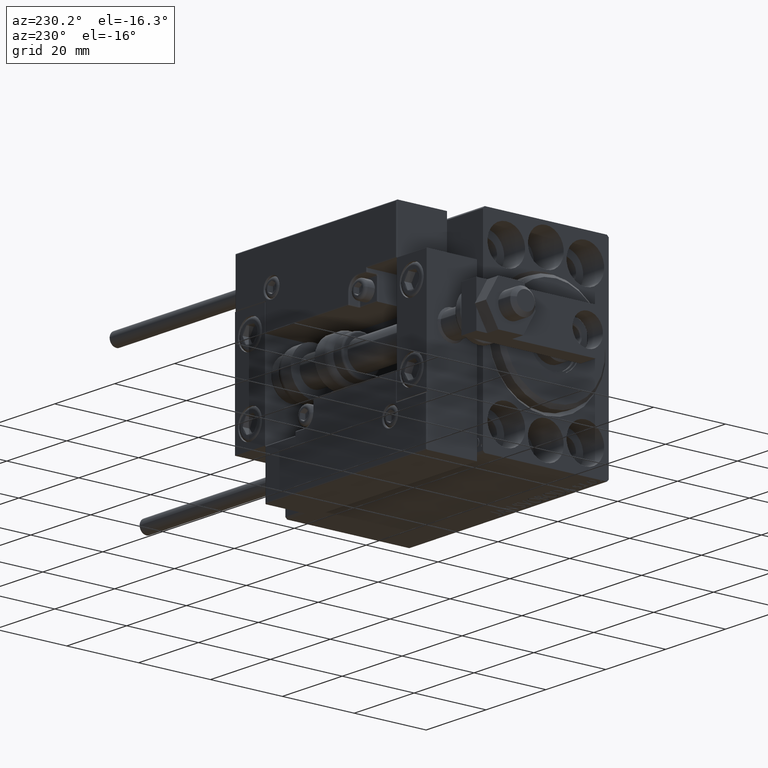
[diagram: clean part render]
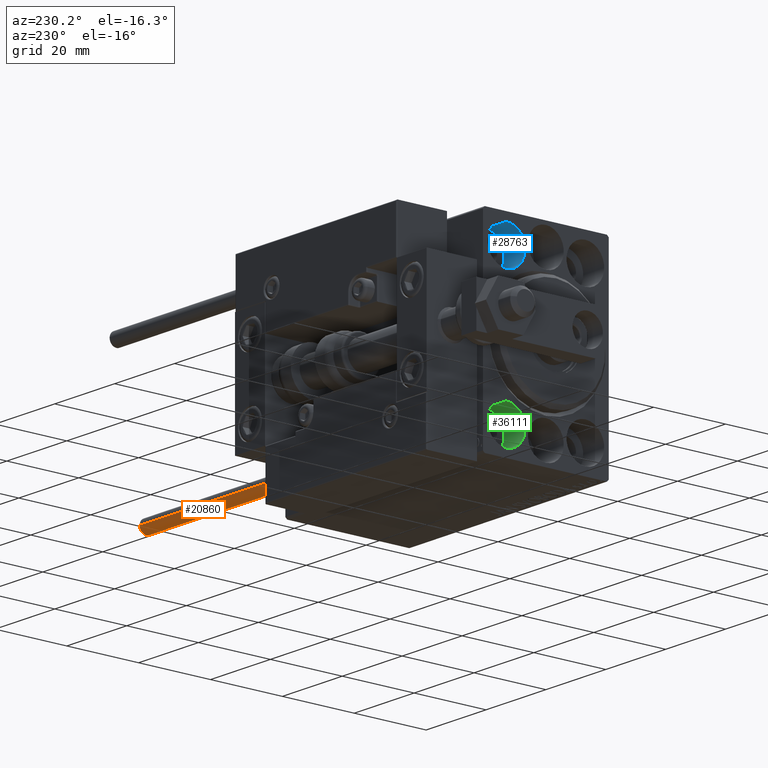
[diagram: same view with three faces highlighted in distinct colors, each labeled with its STEP entity id]
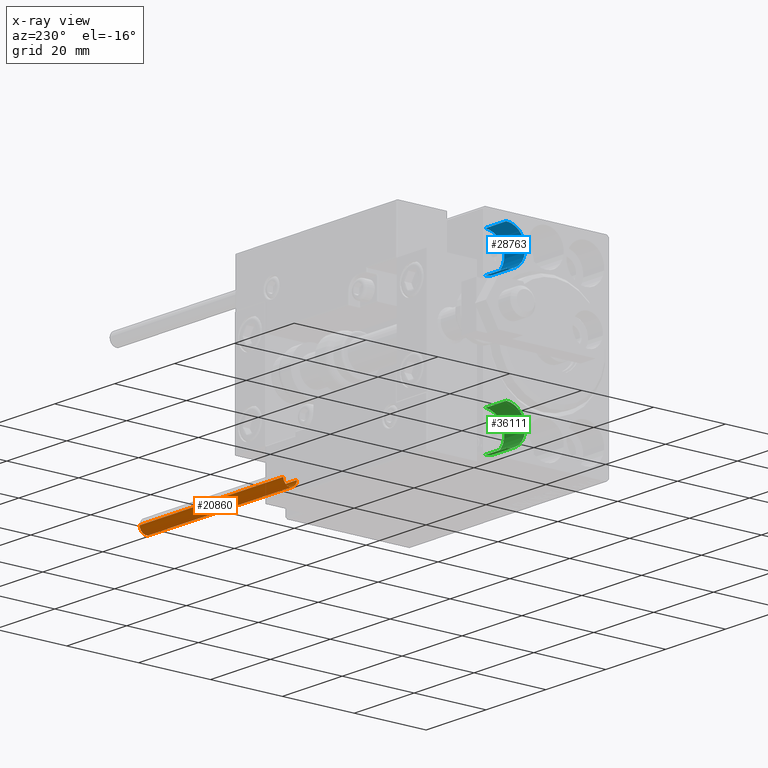
[diagram: x-ray of the same camera — body ghosted, the three highlighted faces saturated]
A machine part, auxiliary view with three faces highlighted in distinct colors.
The next image is the same camera in x-ray (body ghosted, the three faces saturated) — at least one of them is partly hidden behind the body in this view.
Their STEP definitions:

[orange] entity #20860 — the highlighted cylindrical surface (edge-blend (fillet) strip) has radius 1.9 mm, axis along (-1, 0, 0).
#56 = CARTESIAN_POINT ( 'NONE',  ( 0.000000000000000000, 0.000000000000000000, 0.000000000000000000 ) ) ;
#1175 = AXIS2_PLACEMENT_3D ( 'NONE', #20786, #16994, #36771 ) ;
#1395 = DIRECTION ( 'NONE',  ( -0.000000000000000000, -0.000000000000000000, -1.000000000000000000 ) ) ;
#3128 = AXIS2_PLACEMENT_3D ( 'NONE', #33222, #44137, #48200 ) ;
#3383 = VERTEX_POINT ( 'NONE', #26765 ) ;
#3630 = CARTESIAN_POINT ( 'NONE',  ( 1.899999999999999467, 2.326828918379970872E-16, 48.00000000000000000 ) ) ;
#4697 = LINE ( 'NONE', #28015, #36659 ) ;
#5604 = ORIENTED_EDGE ( 'NONE', *, *, #42989, .T. ) ;
#7930 = VERTEX_POINT ( 'NONE', #31806 ) ;
#10040 = VECTOR ( 'NONE', #15552, 1000.000000000000000 ) ;
#10936 = EDGE_LOOP ( 'NONE', ( #11053, #17875, #5604, #42778 ) ) ;
#11053 = ORIENTED_EDGE ( 'NONE', *, *, #46883, .F. ) ;
#12409 = CARTESIAN_POINT ( 'NONE',  ( 1.899999999999999467, 2.326828918379970872E-16, 48.00000000000000000 ) ) ;
#13704 = CYLINDRICAL_SURFACE ( 'NONE', #3128, 1.899999999999999467 ) ;
#15552 = DIRECTION ( 'NONE',  ( -0.000000000000000000, -0.000000000000000000, -1.000000000000000000 ) ) ;
#15703 = CARTESIAN_POINT ( 'NONE',  ( 1.899999999999999467, 2.326828918379970872E-16, 0.000000000000000000 ) ) ;
#16994 = DIRECTION ( 'NONE',  ( 0.000000000000000000, 0.000000000000000000, 1.000000000000000000 ) ) ;
#17875 = ORIENTED_EDGE ( 'NONE', *, *, #47280, .F. ) ;
#20786 = CARTESIAN_POINT ( 'NONE',  ( 0.000000000000000000, 0.000000000000000000, 48.00000000000000000 ) ) ;
#20860 = ADVANCED_FACE ( 'NONE', ( #25335 ), #13704, .T. ) ;
#21771 = VERTEX_POINT ( 'NONE', #15703 ) ;
#22691 = CIRCLE ( 'NONE', #40518, 1.899999999999999467 ) ;
#23617 = DIRECTION ( 'NONE',  ( 1.000000000000000000, 0.000000000000000000, 0.000000000000000000 ) ) ;
#25039 = EDGE_CURVE ( 'NONE', #3383, #21771, #22691, .T. ) ;
#25335 = FACE_OUTER_BOUND ( 'NONE', #10936, .T. ) ;
#26765 = CARTESIAN_POINT ( 'NONE',  ( -1.899999999999999467, 0.000000000000000000, 0.000000000000000000 ) ) ;
#28015 = CARTESIAN_POINT ( 'NONE',  ( -1.899999999999999467, 0.000000000000000000, 48.00000000000000000 ) ) ;
#29225 = VERTEX_POINT ( 'NONE', #12409 ) ;
#31806 = CARTESIAN_POINT ( 'NONE',  ( -1.899999999999999467, 0.000000000000000000, 48.00000000000000000 ) ) ;
#33222 = CARTESIAN_POINT ( 'NONE',  ( 0.000000000000000000, 0.000000000000000000, 48.00000000000000000 ) ) ;
#36659 = VECTOR ( 'NONE', #1395, 1000.000000000000000 ) ;
#36771 = DIRECTION ( 'NONE',  ( 1.000000000000000000, 0.000000000000000000, 0.000000000000000000 ) ) ;
#37651 = CIRCLE ( 'NONE', #1175, 1.899999999999999467 ) ;
#40518 = AXIS2_PLACEMENT_3D ( 'NONE', #56, #41920, #23617 ) ;
#41920 = DIRECTION ( 'NONE',  ( 0.000000000000000000, 0.000000000000000000, 1.000000000000000000 ) ) ;
#42778 = ORIENTED_EDGE ( 'NONE', *, *, #25039, .T. ) ;
#42989 = EDGE_CURVE ( 'NONE', #7930, #3383, #4697, .T. ) ;
#44137 = DIRECTION ( 'NONE',  ( -0.000000000000000000, -0.000000000000000000, -1.000000000000000000 ) ) ;
#45994 = LINE ( 'NONE', #3630, #10040 ) ;
#46883 = EDGE_CURVE ( 'NONE', #29225, #21771, #45994, .T. ) ;
#47280 = EDGE_CURVE ( 'NONE', #7930, #29225, #37651, .T. ) ;
#48200 = DIRECTION ( 'NONE',  ( -1.000000000000000000, 0.000000000000000000, 0.000000000000000000 ) ) ;

[blue] entity #28763 — the highlighted cylindrical surface (edge-blend (fillet) strip) has radius 5.25 mm, axis along (-1, -0, -0).
#474 = VECTOR ( 'NONE', #20804, 1000.000000000000000 ) ;
#1077 = AXIS2_PLACEMENT_3D ( 'NONE', #21989, #13886, #44323 ) ;
#1244 = EDGE_CURVE ( 'NONE', #16791, #38039, #39845, .T. ) ;
#1393 = EDGE_CURVE ( 'NONE', #18817, #38039, #34429, .T. ) ;
#2107 = LINE ( 'NONE', #24914, #42874 ) ;
#3676 = ORIENTED_EDGE ( 'NONE', *, *, #11910, .T. ) ;
#8661 = EDGE_LOOP ( 'NONE', ( #24657, #3676, #43004, #8737 ) ) ;
#8737 = ORIENTED_EDGE ( 'NONE', *, *, #1244, .F. ) ;
#11910 = EDGE_CURVE ( 'NONE', #15816, #18817, #2107, .T. ) ;
#13886 = DIRECTION ( 'NONE',  ( -1.000000000000000000, 0.000000000000000000, 0.000000000000000000 ) ) ;
#15391 = CARTESIAN_POINT ( 'NONE',  ( 0.000000000000000000, 11.00000000000000355, 20.00000000000000000 ) ) ;
#15753 = DIRECTION ( 'NONE',  ( -1.000000000000000000, -0.000000000000000000, -0.000000000000000000 ) ) ;
#15816 = VERTEX_POINT ( 'NONE', #38712 ) ;
#16502 = CARTESIAN_POINT ( 'NONE',  ( 7.000000000000000000, 11.00000000000000355, 20.00000000000000000 ) ) ;
#16791 = VERTEX_POINT ( 'NONE', #20420 ) ;
#18100 = CARTESIAN_POINT ( 'NONE',  ( 0.000000000000000000, 11.00000000000000355, 14.75000000000000000 ) ) ;
#18817 = VERTEX_POINT ( 'NONE', #18100 ) ;
#19183 = DIRECTION ( 'NONE',  ( -1.000000000000000000, 0.000000000000000000, 0.000000000000000000 ) ) ;
#20420 = CARTESIAN_POINT ( 'NONE',  ( 7.000000000000000000, 11.00000000000000355, 25.25000000000000000 ) ) ;
#20804 = DIRECTION ( 'NONE',  ( -1.000000000000000000, -0.000000000000000000, -0.000000000000000000 ) ) ;
#20872 = DIRECTION ( 'NONE',  ( -1.000000000000000000, -0.000000000000000000, -0.000000000000000000 ) ) ;
#21464 = AXIS2_PLACEMENT_3D ( 'NONE', #15391, #19183, #50136 ) ;
#21989 = CARTESIAN_POINT ( 'NONE',  ( 7.000000000000000000, 11.00000000000000355, 20.00000000000000000 ) ) ;
#24657 = ORIENTED_EDGE ( 'NONE', *, *, #36067, .F. ) ;
#24914 = CARTESIAN_POINT ( 'NONE',  ( 7.000000000000000000, 11.00000000000000355, 14.75000000000000000 ) ) ;
#27659 = DIRECTION ( 'NONE',  ( 0.000000000000000000, 0.000000000000000000, 1.000000000000000000 ) ) ;
#28763 = ADVANCED_FACE ( 'NONE', ( #42640 ), #39594, .F. ) ;
#34429 = CIRCLE ( 'NONE', #21464, 5.250000000000000888 ) ;
#36067 = EDGE_CURVE ( 'NONE', #15816, #16791, #44815, .T. ) ;
#38039 = VERTEX_POINT ( 'NONE', #48965 ) ;
#38712 = CARTESIAN_POINT ( 'NONE',  ( 7.000000000000000000, 11.00000000000000355, 14.75000000000000000 ) ) ;
#39594 = CYLINDRICAL_SURFACE ( 'NONE', #47042, 5.250000000000000888 ) ;
#39845 = LINE ( 'NONE', #40344, #474 ) ;
#40344 = CARTESIAN_POINT ( 'NONE',  ( 7.000000000000000000, 11.00000000000000355, 25.25000000000000000 ) ) ;
#42640 = FACE_OUTER_BOUND ( 'NONE', #8661, .T. ) ;
#42874 = VECTOR ( 'NONE', #20872, 1000.000000000000000 ) ;
#43004 = ORIENTED_EDGE ( 'NONE', *, *, #1393, .T. ) ;
#44323 = DIRECTION ( 'NONE',  ( 0.000000000000000000, 0.000000000000000000, 1.000000000000000000 ) ) ;
#44815 = CIRCLE ( 'NONE', #1077, 5.250000000000000888 ) ;
#47042 = AXIS2_PLACEMENT_3D ( 'NONE', #16502, #15753, #27659 ) ;
#48965 = CARTESIAN_POINT ( 'NONE',  ( 0.000000000000000000, 11.00000000000000355, 25.25000000000000000 ) ) ;
#50136 = DIRECTION ( 'NONE',  ( 0.000000000000000000, 0.000000000000000000, 1.000000000000000000 ) ) ;

[green] entity #36111 — the highlighted cylindrical surface (edge-blend (fillet) strip) has radius 5.25 mm, axis along (-1, -0, -0).
#3164 = EDGE_CURVE ( 'NONE', #47172, #37552, #40119, .T. ) ;
#3687 = AXIS2_PLACEMENT_3D ( 'NONE', #24278, #43823, #20474 ) ;
#3918 = DIRECTION ( 'NONE',  ( -1.000000000000000000, -0.000000000000000000, -0.000000000000000000 ) ) ;
#5665 = DIRECTION ( 'NONE',  ( -1.000000000000000000, 0.000000000000000000, 0.000000000000000000 ) ) ;
#5766 = CYLINDRICAL_SURFACE ( 'NONE', #48896, 5.250000000000000888 ) ;
#6909 = CARTESIAN_POINT ( 'NONE',  ( 7.000000000000000000, 11.00000000000000355, -14.75000000000000000 ) ) ;
#7724 = EDGE_CURVE ( 'NONE', #47172, #20429, #11025, .T. ) ;
#8886 = VERTEX_POINT ( 'NONE', #25171 ) ;
#10477 = ORIENTED_EDGE ( 'NONE', *, *, #18063, .F. ) ;
#11025 = LINE ( 'NONE', #42231, #36208 ) ;
#14136 = DIRECTION ( 'NONE',  ( -1.000000000000000000, -0.000000000000000000, -0.000000000000000000 ) ) ;
#14865 = AXIS2_PLACEMENT_3D ( 'NONE', #17325, #5665, #36115 ) ;
#17325 = CARTESIAN_POINT ( 'NONE',  ( 0.000000000000000000, 11.00000000000000355, -20.00000000000000000 ) ) ;
#18063 = EDGE_CURVE ( 'NONE', #37552, #8886, #45476, .T. ) ;
#19104 = CARTESIAN_POINT ( 'NONE',  ( 7.000000000000000000, 11.00000000000000355, -14.75000000000000000 ) ) ;
#19715 = CIRCLE ( 'NONE', #14865, 5.250000000000000888 ) ;
#20429 = VERTEX_POINT ( 'NONE', #21354 ) ;
#20474 = DIRECTION ( 'NONE',  ( 0.000000000000000000, 0.000000000000000000, 1.000000000000000000 ) ) ;
#21223 = CARTESIAN_POINT ( 'NONE',  ( 7.000000000000000000, 11.00000000000000355, -20.00000000000000000 ) ) ;
#21354 = CARTESIAN_POINT ( 'NONE',  ( 0.000000000000000000, 11.00000000000000355, -25.25000000000000000 ) ) ;
#22384 = DIRECTION ( 'NONE',  ( -1.000000000000000000, -0.000000000000000000, -0.000000000000000000 ) ) ;
#24278 = CARTESIAN_POINT ( 'NONE',  ( 7.000000000000000000, 11.00000000000000355, -20.00000000000000000 ) ) ;
#25171 = CARTESIAN_POINT ( 'NONE',  ( 0.000000000000000000, 11.00000000000000355, -14.75000000000000000 ) ) ;
#27755 = ORIENTED_EDGE ( 'NONE', *, *, #7724, .T. ) ;
#28129 = VECTOR ( 'NONE', #22384, 1000.000000000000000 ) ;
#36111 = ADVANCED_FACE ( 'NONE', ( #37471 ), #5766, .F. ) ;
#36115 = DIRECTION ( 'NONE',  ( 0.000000000000000000, 0.000000000000000000, 1.000000000000000000 ) ) ;
#36208 = VECTOR ( 'NONE', #3918, 1000.000000000000000 ) ;
#37471 = FACE_OUTER_BOUND ( 'NONE', #46224, .T. ) ;
#37552 = VERTEX_POINT ( 'NONE', #19104 ) ;
#38641 = ORIENTED_EDGE ( 'NONE', *, *, #3164, .F. ) ;
#39873 = EDGE_CURVE ( 'NONE', #20429, #8886, #19715, .T. ) ;
#40119 = CIRCLE ( 'NONE', #3687, 5.250000000000000888 ) ;
#40265 = DIRECTION ( 'NONE',  ( 0.000000000000000000, 0.000000000000000000, 1.000000000000000000 ) ) ;
#42231 = CARTESIAN_POINT ( 'NONE',  ( 7.000000000000000000, 11.00000000000000355, -25.25000000000000000 ) ) ;
#43823 = DIRECTION ( 'NONE',  ( -1.000000000000000000, 0.000000000000000000, 0.000000000000000000 ) ) ;
#45476 = LINE ( 'NONE', #6909, #28129 ) ;
#45688 = CARTESIAN_POINT ( 'NONE',  ( 7.000000000000000000, 11.00000000000000355, -25.25000000000000000 ) ) ;
#46224 = EDGE_LOOP ( 'NONE', ( #38641, #27755, #47304, #10477 ) ) ;
#47172 = VERTEX_POINT ( 'NONE', #45688 ) ;
#47304 = ORIENTED_EDGE ( 'NONE', *, *, #39873, .T. ) ;
#48896 = AXIS2_PLACEMENT_3D ( 'NONE', #21223, #14136, #40265 ) ;